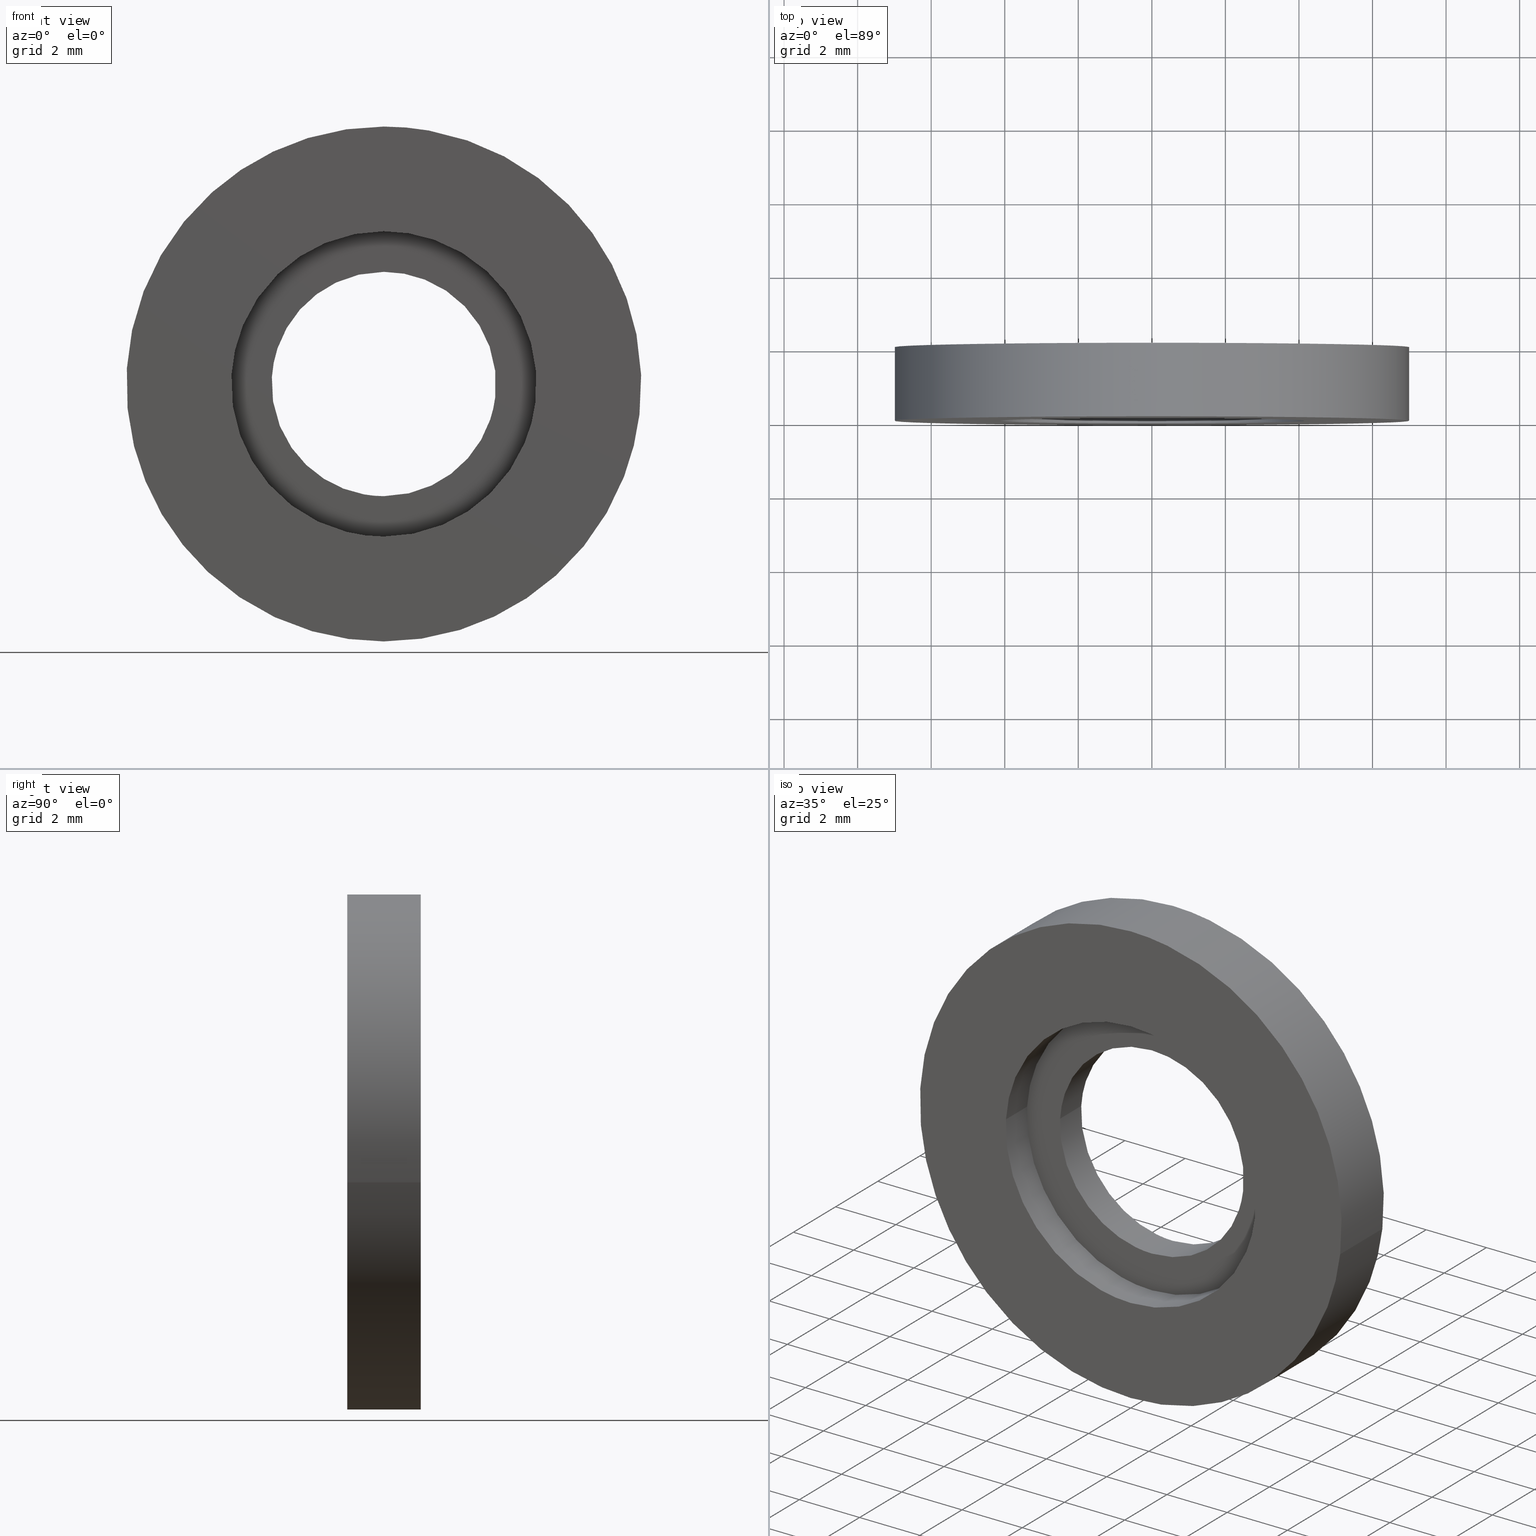
[diagram: canonical four-view strip — front | top / right | iso, engineering-drawing reading convention]
A machine part, canonical four-view strip (front | top / right | iso — engineering-drawing reading convention). The complete STEP part file that produces these views, byte-faithful:
ISO-10303-21;
HEADER;
/****************************************************************
 * Generated by software with PDE/Lib inside                    *
 * PDElib Version 4.4.1-0003, patched  Thursday August 19 11:58 *
 * International Technegroup Inc. (www.iti-oh.com)              *
 ****************************************************************/
FILE_DESCRIPTION((''),'2;1');
FILE_NAME('','2005-07-15T17:30:02',(''),(''),'','CADfix','');
FILE_SCHEMA(('AUTOMOTIVE_DESIGN'));
ENDSEC;
DATA;
#5=APPLICATION_CONTEXT('automotive design');
#6=APPLICATION_PROTOCOL_DEFINITION('Draft International Standard','automotive_design',1998,#5);
#7=PRODUCT_CONTEXT('None',#5,'mechanical');
#8=PRODUCT('washer','','None',(#7));
#9=PRODUCT_RELATED_PRODUCT_CATEGORY('part','description',(#8));
#10=PRODUCT_DEFINITION_FORMATION('None','None',#8);
#11=PRODUCT_DEFINITION_CONTEXT('part definition',#5,'design');
#12=PRODUCT_DEFINITION('None','None',#10,#11);
#18=(NAMED_UNIT(*)PLANE_ANGLE_UNIT()SI_UNIT($,.RADIAN.));
#19=DIMENSIONAL_EXPONENTS(0.0,0.0,0.0,0.0,0.0,0.0,0.0);
#20=PLANE_ANGLE_MEASURE_WITH_UNIT(PLANE_ANGLE_MEASURE(0.017453292500000),#18);
#24=(CONVERSION_BASED_UNIT('DEGREE',#20)NAMED_UNIT(#19)PLANE_ANGLE_UNIT());
#28=(NAMED_UNIT(*)SI_UNIT($,.STERADIAN.)SOLID_ANGLE_UNIT());
#32=(LENGTH_UNIT()NAMED_UNIT(*)SI_UNIT(.MILLI.,.METRE.));
#34=UNCERTAINTY_MEASURE_WITH_UNIT(LENGTH_MEASURE(0.001000000000000),#32,'DISTANCE_ACCURACY_VALUE','');
#36=(GEOMETRIC_REPRESENTATION_CONTEXT(3)GLOBAL_UNCERTAINTY_ASSIGNED_CONTEXT((#34))GLOBAL_UNIT_ASSIGNED_CONTEXT((#24,#28,#32))REPRESENTATION_CONTEXT('None','None'));
#37=AXIS2_PLACEMENT_3D('',#38,#39,#40);
#38=CARTESIAN_POINT('',(0.0,0.0,0.0));
#39=DIRECTION('',(0.0,0.0,1.0));
#40=DIRECTION('',(1.0,0.0,0.0));
#41=ADVANCED_BREP_SHAPE_REPRESENTATION('',(#37,#661),#36);
#42=PRODUCT_DEFINITION_SHAPE('','',#12);
#43=SHAPE_DEFINITION_REPRESENTATION(#42,#41);
#44=CARTESIAN_POINT('',(4.120991520428268,-0.975000000000000,-0.489842309894017));
#45=CARTESIAN_POINT('',(4.135010596886946,-0.975000000000000,-0.371901303077065));
#46=CARTESIAN_POINT('',(4.142261409720344,-0.975000000000000,-0.253351561166736));
#47=CARTESIAN_POINT('',(4.395612970887080,-0.975000000000000,3.888909848553608));
#48=CARTESIAN_POINT('',(0.253351561166736,-0.975000000000000,4.142261409720344));
#49=CARTESIAN_POINT('',(-3.888909848553608,-0.975000000000000,4.395612970887080));
#50=CARTESIAN_POINT('',(-4.142261409720344,-0.975000000000000,0.253351561166735));
#51=CARTESIAN_POINT('',(4.120991520428268,-2.025624999999999,-0.489842309894017));
#52=CARTESIAN_POINT('',(4.135010596886946,-2.025625000000000,-0.371901303077065));
#53=CARTESIAN_POINT('',(4.142261409720344,-2.025625000000000,-0.253351561166736));
#54=CARTESIAN_POINT('',(4.395612970887080,-2.025624999999999,3.888909848553608));
#55=CARTESIAN_POINT('',(0.253351561166736,-2.025625000000000,4.142261409720344));
#56=CARTESIAN_POINT('',(-3.888909848553608,-2.025624999999999,4.395612970887080));
#57=CARTESIAN_POINT('',(-4.142261409720344,-2.025625000000000,0.253351561166735));
#65=(BOUNDED_SURFACE()B_SPLINE_SURFACE(2,1,((#44,#51),(#45,#52),(#46,#53),(#47,#54),(#48,#55),(#49,#56),(#50,#57)),.UNSPECIFIED.,.F.,.F.,.U.)B_SPLINE_SURFACE_WITH_KNOTS((3,2,2,3),(2,2),(0.0,0.275037937964076,7.150986387065953,14.026934836167831),(0.0,1.0),.UNSPECIFIED.)GEOMETRIC_REPRESENTATION_ITEM()RATIONAL_B_SPLINE_SURFACE(((0.977505800795127,0.977505800795127),(0.988284271247462,0.988284271247462),(1.0,1.0),(0.707106781186548,0.707106781186548),(1.0,1.0),(0.707106781186548,0.707106781186548),(1.0,1.0)))REPRESENTATION_ITEM('')SURFACE());
#66=CARTESIAN_POINT('',(4.120992084721502,-1.000000000000042,-0.489837562508097));
#67=VERTEX_POINT('',#66);
#68=CARTESIAN_POINT('',(0.0,-1.0,4.150002000000000));
#69=VERTEX_POINT('',#68);
#70=CARTESIAN_POINT('',(4.120992084721502,-1.000000000000042,-0.489837562508097));
#71=CARTESIAN_POINT('',(4.150002000000001,-1.0,-0.245777816216738));
#72=CARTESIAN_POINT('',(4.150002000000000,-1.0,-2.795203E-016));
#73=CARTESIAN_POINT('',(4.150002000000000,-1.0,4.150002000000000));
#74=CARTESIAN_POINT('',(0.0,-1.0,4.150002000000000));
#82=(BOUNDED_CURVE()B_SPLINE_CURVE(2,(#70,#71,#72,#73,#74),.UNSPECIFIED.,.F.,.U.)B_SPLINE_CURVE_WITH_KNOTS((3,2,3),(0.229562668207552,0.250000000000000,0.500000000000000),.UNSPECIFIED.)CURVE()GEOMETRIC_REPRESENTATION_ITEM()RATIONAL_B_SPLINE_CURVE((0.956027135792348,0.976056176429406,1.0,0.707106781186547,1.0))REPRESENTATION_ITEM(''));
#83=EDGE_CURVE('',#67,#69,#82,.T.);
#84=ORIENTED_EDGE('',*,*,#83,.F.);
#85=CARTESIAN_POINT('',(4.120992077924378,-2.0,-0.489837619692699));
#86=VERTEX_POINT('',#85);
#87=CARTESIAN_POINT('',(4.120992084721502,-1.000000000000042,-0.489837562508097));
#88=CARTESIAN_POINT('',(4.120992077924378,-2.0,-0.489837619692699));
#89=QUASI_UNIFORM_CURVE('',1,(#87,#88),.UNSPECIFIED.,.F.,.U.);
#90=EDGE_CURVE('',#67,#86,#89,.T.);
#91=ORIENTED_EDGE('',*,*,#90,.T.);
#92=CARTESIAN_POINT('',(0.0,-2.0,4.150002000000000));
#93=VERTEX_POINT('',#92);
#94=CARTESIAN_POINT('',(4.120992077924378,-2.000000000000000,-0.489837619692699));
#95=CARTESIAN_POINT('',(4.150002000000000,-2.000000000000000,-0.245777845111303));
#96=CARTESIAN_POINT('',(4.150002000000000,-2.0,-2.795203E-016));
#97=CARTESIAN_POINT('',(4.150002000000000,-2.0,4.150002000000000));
#98=CARTESIAN_POINT('',(0.0,-2.0,4.150002000000000));
#106=(BOUNDED_CURVE()B_SPLINE_CURVE(2,(#94,#95,#96,#97,#98),.UNSPECIFIED.,.F.,.U.)B_SPLINE_CURVE_WITH_KNOTS((3,2,3),(0.229562665862392,0.250000000000000,0.500000000000000),.UNSPECIFIED.)CURVE()GEOMETRIC_REPRESENTATION_ITEM()RATIONAL_B_SPLINE_CURVE((0.956027131195729,0.976056173681880,1.0,0.707106781186547,1.0))REPRESENTATION_ITEM(''));
#107=EDGE_CURVE('',#86,#93,#106,.T.);
#108=ORIENTED_EDGE('',*,*,#107,.T.);
#109=CARTESIAN_POINT('',(-4.142261716955668,-2.0,0.253346537813635));
#110=VERTEX_POINT('',#109);
#111=CARTESIAN_POINT('',(0.0,-2.0,4.150002000000000));
#112=CARTESIAN_POINT('',(-3.903936802249314,-2.000000000000000,4.150001999999999));
#113=CARTESIAN_POINT('',(-4.142261716955668,-2.000000000000000,0.253346537813635));
#121=(BOUNDED_CURVE()B_SPLINE_CURVE(2,(#111,#112,#113),.UNSPECIFIED.,.F.,.U.)B_SPLINE_CURVE_WITH_KNOTS((3,3),(0.500000000000000,0.739333171490855),.UNSPECIFIED.)CURVE()GEOMETRIC_REPRESENTATION_ITEM()RATIONAL_B_SPLINE_CURVE((1.0,0.719603748132846,0.976072490133807))REPRESENTATION_ITEM(''));
#122=EDGE_CURVE('',#93,#110,#121,.T.);
#123=ORIENTED_EDGE('',*,*,#122,.T.);
#124=CARTESIAN_POINT('',(-4.142261720703038,-0.999999999999970,0.253346476542214));
#125=VERTEX_POINT('',#124);
#126=CARTESIAN_POINT('',(-4.142261720703038,-0.999999999999970,0.253346476542214));
#127=CARTESIAN_POINT('',(-4.142261716955668,-2.0,0.253346537813635));
#128=QUASI_UNIFORM_CURVE('',1,(#126,#127),.UNSPECIFIED.,.F.,.U.);
#129=EDGE_CURVE('',#125,#110,#128,.T.);
#130=ORIENTED_EDGE('',*,*,#129,.F.);
#131=CARTESIAN_POINT('',(0.0,-1.0,4.150002000000000));
#132=CARTESIAN_POINT('',(-3.903936860103388,-1.0,4.150001999999998));
#133=CARTESIAN_POINT('',(-4.142261720703038,-0.999999999999970,0.253346476542214));
#141=(BOUNDED_CURVE()B_SPLINE_CURVE(2,(#131,#132,#133),.UNSPECIFIED.,.F.,.U.)B_SPLINE_CURVE_WITH_KNOTS((3,3),(0.500000000000000,0.739333174043130),.UNSPECIFIED.)CURVE()GEOMETRIC_REPRESENTATION_ITEM()RATIONAL_B_SPLINE_CURVE((1.0,0.719603745142670,0.976072495603829))REPRESENTATION_ITEM(''));
#142=EDGE_CURVE('',#69,#125,#141,.T.);
#143=ORIENTED_EDGE('',*,*,#142,.F.);
#144=EDGE_LOOP('',(#84,#91,#108,#123,#130,#143));
#145=FACE_OUTER_BOUND('',#144,.T.);
#146=ADVANCED_FACE('',(#145),#65,.F.);
#147=CARTESIAN_POINT('',(-4.142261409720344,-0.975000000000000,0.253351561166735));
#148=CARTESIAN_POINT('',(-4.395612970887080,-0.975000000000000,-3.888909848553609));
#149=CARTESIAN_POINT('',(-0.253351561166736,-0.975000000000000,-4.142261409720344));
#150=CARTESIAN_POINT('',(3.658407250070912,-0.975000000000000,-4.381514828012384));
#151=CARTESIAN_POINT('',(4.120991520428268,-0.975000000000000,-0.489842309894017));
#152=CARTESIAN_POINT('',(-4.142261409720344,-2.025625000000000,0.253351561166735));
#153=CARTESIAN_POINT('',(-4.395612970887080,-2.025624999999999,-3.888909848553609));
#154=CARTESIAN_POINT('',(-0.253351561166736,-2.025625000000000,-4.142261409720344));
#155=CARTESIAN_POINT('',(3.658407250070912,-2.025624999999999,-4.381514828012384));
#156=CARTESIAN_POINT('',(4.120991520428268,-2.025624999999999,-0.489842309894017));
#164=(BOUNDED_SURFACE()B_SPLINE_SURFACE(2,1,((#147,#152),(#148,#153),(#149,#154),(#150,#155),(#151,#156)),.UNSPECIFIED.,.F.,.F.,.U.)B_SPLINE_SURFACE_WITH_KNOTS((3,2,3),(2,2),(0.0,6.875948449101878,13.476858960239680),(0.0,1.0),.UNSPECIFIED.)GEOMETRIC_REPRESENTATION_ITEM()RATIONAL_B_SPLINE_SURFACE(((1.0,1.0),(0.707106781186548,0.707106781186548),(1.0,1.0),(0.718822509939086,0.718822509939086),(0.977505800795127,0.977505800795127)))REPRESENTATION_ITEM('')SURFACE());
#165=CARTESIAN_POINT('',(0.0,-1.0,-4.150002000000000));
#166=VERTEX_POINT('',#165);
#167=CARTESIAN_POINT('',(0.0,-1.0,-4.150002000000000));
#168=CARTESIAN_POINT('',(3.685930335130786,-1.0,-4.150001999999999));
#169=CARTESIAN_POINT('',(4.120992084721502,-1.000000000000042,-0.489837562508097));
#177=(BOUNDED_CURVE()B_SPLINE_CURVE(2,(#167,#168,#169),.UNSPECIFIED.,.F.,.U.)B_SPLINE_CURVE_WITH_KNOTS((3,3),(0.0,0.229562668207552),.UNSPECIFIED.)CURVE()GEOMETRIC_REPRESENTATION_ITEM()RATIONAL_B_SPLINE_CURVE((1.0,0.731050604757142,0.956027135792348))REPRESENTATION_ITEM(''));
#178=EDGE_CURVE('',#166,#67,#177,.T.);
#179=ORIENTED_EDGE('',*,*,#178,.F.);
#180=CARTESIAN_POINT('',(-4.142261720703038,-0.999999999999970,0.253346476542214));
#181=CARTESIAN_POINT('',(-4.150002000000000,-1.0,0.126791479354253));
#182=CARTESIAN_POINT('',(-4.150002000000000,-1.0,-2.795203E-016));
#183=CARTESIAN_POINT('',(-4.150002000000000,-1.0,-4.150002000000000));
#184=CARTESIAN_POINT('',(0.0,-1.0,-4.150002000000000));
#192=(BOUNDED_CURVE()B_SPLINE_CURVE(2,(#180,#181,#182,#183,#184),.UNSPECIFIED.,.F.,.U.)B_SPLINE_CURVE_WITH_KNOTS((3,2,3),(0.739333174043130,0.750000000000000,1.0),.UNSPECIFIED.)CURVE()GEOMETRIC_REPRESENTATION_ITEM()RATIONAL_B_SPLINE_CURVE((0.976072495603829,0.987503036043877,1.0,0.707106781186547,1.0))REPRESENTATION_ITEM(''));
#193=EDGE_CURVE('',#125,#166,#192,.T.);
#194=ORIENTED_EDGE('',*,*,#193,.F.);
#195=ORIENTED_EDGE('',*,*,#129,.T.);
#196=CARTESIAN_POINT('',(0.0,-2.0,-4.150002000000000));
#197=VERTEX_POINT('',#196);
#198=CARTESIAN_POINT('',(-4.142261716955668,-2.000000000000000,0.253346537813635));
#199=CARTESIAN_POINT('',(-4.150002000000000,-2.000000000000000,0.126791510075858));
#200=CARTESIAN_POINT('',(-4.150002000000000,-2.0,-2.795203E-016));
#201=CARTESIAN_POINT('',(-4.150002000000000,-2.0,-4.150002000000000));
#202=CARTESIAN_POINT('',(0.0,-2.0,-4.150002000000000));
#210=(BOUNDED_CURVE()B_SPLINE_CURVE(2,(#198,#199,#200,#201,#202),.UNSPECIFIED.,.F.,.U.)B_SPLINE_CURVE_WITH_KNOTS((3,2,3),(0.739333171490855,0.750000000000000,1.0),.UNSPECIFIED.)CURVE()GEOMETRIC_REPRESENTATION_ITEM()RATIONAL_B_SPLINE_CURVE((0.976072490133807,0.987503033053701,1.0,0.707106781186547,1.0))REPRESENTATION_ITEM(''));
#211=EDGE_CURVE('',#110,#197,#210,.T.);
#212=ORIENTED_EDGE('',*,*,#211,.T.);
#213=CARTESIAN_POINT('',(0.0,-2.0,-4.150002000000000));
#214=CARTESIAN_POINT('',(3.685930283623234,-2.000000000000000,-4.150001999999999));
#215=CARTESIAN_POINT('',(4.120992077924378,-2.000000000000000,-0.489837619692699));
#223=(BOUNDED_CURVE()B_SPLINE_CURVE(2,(#213,#214,#215),.UNSPECIFIED.,.F.,.U.)B_SPLINE_CURVE_WITH_KNOTS((3,3),(0.0,0.229562665862392),.UNSPECIFIED.)CURVE()GEOMETRIC_REPRESENTATION_ITEM()RATIONAL_B_SPLINE_CURVE((1.0,0.731050607504668,0.956027131195729))REPRESENTATION_ITEM(''));
#224=EDGE_CURVE('',#197,#86,#223,.T.);
#225=ORIENTED_EDGE('',*,*,#224,.T.);
#226=ORIENTED_EDGE('',*,*,#90,.F.);
#227=EDGE_LOOP('',(#179,#194,#195,#212,#225,#226));
#228=FACE_OUTER_BOUND('',#227,.T.);
#229=ADVANCED_FACE('',(#228),#164,.F.);
#230=CARTESIAN_POINT('',(3.023335626397158,0.024999999999999,-0.404949646447528));
#231=CARTESIAN_POINT('',(3.026014376165050,0.024999999999999,-0.382413608102410));
#232=CARTESIAN_POINT('',(3.038981230730632,0.024999999999999,-0.273324832731103));
#233=CARTESIAN_POINT('',(3.044310137051895,0.024999999999999,-0.186197984532775));
#234=CARTESIAN_POINT('',(3.230508121584670,0.024999999999999,2.858112152519122));
#235=CARTESIAN_POINT('',(0.186197984532774,0.024999999999999,3.044310137051895));
#236=CARTESIAN_POINT('',(-2.858112152519122,0.024999999999999,3.230508121584669));
#237=CARTESIAN_POINT('',(-3.045649230794186,0.024999999999999,0.164303995377394));
#238=CARTESIAN_POINT('',(-3.046980370098751,0.024999999999999,0.142540060129155));
#239=CARTESIAN_POINT('',(3.023335626397158,-1.025625000000001,-0.404949646447528));
#240=CARTESIAN_POINT('',(3.026014376165050,-1.025625000000000,-0.382413608102410));
#241=CARTESIAN_POINT('',(3.038981230730632,-1.025625000000000,-0.273324832731103));
#242=CARTESIAN_POINT('',(3.044310137051895,-1.025625000000000,-0.186197984532775));
#243=CARTESIAN_POINT('',(3.230508121584670,-1.025625000000000,2.858112152519122));
#244=CARTESIAN_POINT('',(0.186197984532774,-1.025625000000000,3.044310137051895));
#245=CARTESIAN_POINT('',(-2.858112152519122,-1.025625000000000,3.230508121584669));
#246=CARTESIAN_POINT('',(-3.045649230794186,-1.025625000000000,0.164303995377394));
#247=CARTESIAN_POINT('',(-3.046980370098751,-1.025624999999999,0.142540060129155));
#255=(BOUNDED_SURFACE()B_SPLINE_SURFACE(2,1,((#230,#239),(#231,#240),(#232,#241),(#233,#242),(#234,#243),(#235,#244),(#236,#245),(#237,#246),(#238,#247)),.UNSPECIFIED.,.F.,.F.,.U.)B_SPLINE_SURFACE_WITH_KNOTS((3,1,2,2,1,3),(2,2),(0.0,0.051543144661396,0.253679296825297,5.307083100922807,10.360486905020320,10.412037142382770),(0.0,1.0),.UNSPECIFIED.)GEOMETRIC_REPRESENTATION_ITEM()RATIONAL_B_SPLINE_SURFACE(((0.972008948739658,0.972008948739658),(0.974757374767393,0.974757374767393),(0.988284271247462,0.988284271247462),(1.0,1.0),(0.707106781186548,0.707106781186548),(1.0,1.0),(0.707106781186548,0.707106781186548),(1.002987830685417,1.002987830685417),(1.005975661370835,1.005975661370835)))REPRESENTATION_ITEM('')SURFACE());
#256=CARTESIAN_POINT('',(3.028678228583696,-0.999999999999980,-0.360002899574624));
#257=VERTEX_POINT('',#256);
#258=CARTESIAN_POINT('',(0.0,-1.0,3.049998999999999));
#259=VERTEX_POINT('',#258);
#260=CARTESIAN_POINT('',(3.028678228583697,-0.999999999999980,-0.360002899574624));
#261=CARTESIAN_POINT('',(3.049999000000000,-1.0,-0.180632799276890));
#262=CARTESIAN_POINT('',(3.049999000000000,-1.0,-2.795203E-016));
#263=CARTESIAN_POINT('',(3.049998999999999,-1.0,3.049998999999999));
#264=CARTESIAN_POINT('',(0.0,-1.0,3.049998999999999));
#272=(BOUNDED_CURVE()B_SPLINE_CURVE(2,(#260,#261,#262,#263,#264),.UNSPECIFIED.,.F.,.U.)B_SPLINE_CURVE_WITH_KNOTS((3,2,3),(0.229562551530697,0.250000000000000,0.500000000000000),.UNSPECIFIED.)CURVE()GEOMETRIC_REPRESENTATION_ITEM()RATIONAL_B_SPLINE_CURVE((0.956026907100639,0.976056039733967,1.0,0.707106781186547,1.0))REPRESENTATION_ITEM(''));
#273=EDGE_CURVE('',#257,#259,#272,.T.);
#274=ORIENTED_EDGE('',*,*,#273,.T.);
#275=CARTESIAN_POINT('',(-3.044310423648793,-0.999999999999929,0.186193298596548));
#276=VERTEX_POINT('',#275);
#277=CARTESIAN_POINT('',(0.0,-1.0,3.049998999999999));
#278=CARTESIAN_POINT('',(-2.869156987937794,-1.0,3.049998999999999));
#279=CARTESIAN_POINT('',(-3.044310423648793,-0.999999999999929,0.186193298596548));
#287=(BOUNDED_CURVE()B_SPLINE_CURVE(2,(#277,#278,#279),.UNSPECIFIED.,.F.,.U.)B_SPLINE_CURVE_WITH_KNOTS((3,3),(0.500000000000000,0.739333227833638),.UNSPECIFIED.)CURVE()GEOMETRIC_REPRESENTATION_ITEM()RATIONAL_B_SPLINE_CURVE((1.0,0.719603682123169,0.976072610887369))REPRESENTATION_ITEM(''));
#288=EDGE_CURVE('',#259,#276,#287,.T.);
#289=ORIENTED_EDGE('',*,*,#288,.T.);
#290=CARTESIAN_POINT('',(-3.044310420114468,-5.819705E-016,0.186193356385155));
#291=VERTEX_POINT('',#290);
#292=CARTESIAN_POINT('',(-3.044310420114468,-5.819705E-016,0.186193356385155));
#293=CARTESIAN_POINT('',(-3.044310423648793,-0.999999999999929,0.186193298596548));
#294=QUASI_UNIFORM_CURVE('',1,(#292,#293),.UNSPECIFIED.,.F.,.U.);
#295=EDGE_CURVE('',#291,#276,#294,.T.);
#296=ORIENTED_EDGE('',*,*,#295,.F.);
#297=CARTESIAN_POINT('',(0.0,-5.602572E-016,3.049998999999999));
#298=VERTEX_POINT('',#297);
#299=CARTESIAN_POINT('',(0.0,-5.602572E-016,3.049998999999999));
#300=CARTESIAN_POINT('',(-2.869156933372273,-5.602572E-016,3.049998999999998));
#301=CARTESIAN_POINT('',(-3.044310420114468,-5.819705E-016,0.186193356385155));
#309=(BOUNDED_CURVE()B_SPLINE_CURVE(2,(#299,#300,#301),.UNSPECIFIED.,.F.,.U.)B_SPLINE_CURVE_WITH_KNOTS((3,3),(0.500000000000000,0.739333224558268),.UNSPECIFIED.)CURVE()GEOMETRIC_REPRESENTATION_ITEM()RATIONAL_B_SPLINE_CURVE((1.0,0.719603685960504,0.976072603867611))REPRESENTATION_ITEM(''));
#310=EDGE_CURVE('',#298,#291,#309,.T.);
#311=ORIENTED_EDGE('',*,*,#310,.F.);
#312=CARTESIAN_POINT('',(3.028678226535830,-5.818179E-016,-0.360002916803237));
#313=VERTEX_POINT('',#312);
#314=CARTESIAN_POINT('',(3.028678226535831,-5.818179E-016,-0.360002916803237));
#315=CARTESIAN_POINT('',(3.049999000000000,-5.602572E-016,-0.180632807982265));
#316=CARTESIAN_POINT('',(3.049999000000000,-5.602572E-016,-2.795203E-016));
#317=CARTESIAN_POINT('',(3.049998999999999,-5.602572E-016,3.049998999999999));
#318=CARTESIAN_POINT('',(0.0,-5.602572E-016,3.049998999999999));
#326=(BOUNDED_CURVE()B_SPLINE_CURVE(2,(#314,#315,#316,#317,#318),.UNSPECIFIED.,.F.,.U.)B_SPLINE_CURVE_WITH_KNOTS((3,2,3),(0.229562550569323,0.250000000000000,0.500000000000000),.UNSPECIFIED.)CURVE()GEOMETRIC_REPRESENTATION_ITEM()RATIONAL_B_SPLINE_CURVE((0.956026905216306,0.976056038607648,1.0,0.707106781186547,1.0))REPRESENTATION_ITEM(''));
#327=EDGE_CURVE('',#313,#298,#326,.T.);
#328=ORIENTED_EDGE('',*,*,#327,.F.);
#329=CARTESIAN_POINT('',(3.028678226535830,-5.818179E-016,-0.360002916803237));
#330=CARTESIAN_POINT('',(3.028678228583696,-0.999999999999980,-0.360002899574624));
#331=QUASI_UNIFORM_CURVE('',1,(#329,#330),.UNSPECIFIED.,.F.,.U.);
#332=EDGE_CURVE('',#313,#257,#331,.T.);
#333=ORIENTED_EDGE('',*,*,#332,.T.);
#334=EDGE_LOOP('',(#274,#289,#296,#311,#328,#333));
#335=FACE_OUTER_BOUND('',#334,.T.);
#336=ADVANCED_FACE('',(#335),#255,.F.);
#337=CARTESIAN_POINT('',(-3.044310137051895,0.024999999999999,0.186197984532774));
#338=CARTESIAN_POINT('',(-3.230508121584670,0.024999999999999,-2.858112152519122));
#339=CARTESIAN_POINT('',(-0.186197984532774,0.024999999999999,-3.044310137051896));
#340=CARTESIAN_POINT('',(2.688706765516987,0.024999999999999,-3.220146844248012));
#341=CARTESIAN_POINT('',(3.028678062399655,0.024999999999999,-0.360004297668879));
#342=CARTESIAN_POINT('',(-3.044310137051895,-1.025625000000000,0.186197984532774));
#343=CARTESIAN_POINT('',(-3.230508121584670,-1.025625000000000,-2.858112152519122));
#344=CARTESIAN_POINT('',(-0.186197984532774,-1.025625000000000,-3.044310137051896));
#345=CARTESIAN_POINT('',(2.688706765516987,-1.025625000000000,-3.220146844248012));
#346=CARTESIAN_POINT('',(3.028678062399655,-1.025625000000000,-0.360004297668879));
#354=(BOUNDED_SURFACE()B_SPLINE_SURFACE(2,1,((#337,#342),(#338,#343),(#339,#344),(#340,#345),(#341,#346)),.UNSPECIFIED.,.F.,.F.,.U.)B_SPLINE_SURFACE_WITH_KNOTS((3,2,3),(2,2),(0.0,5.053403804097509,9.904671456031117),(0.0,1.0),.UNSPECIFIED.)GEOMETRIC_REPRESENTATION_ITEM()RATIONAL_B_SPLINE_SURFACE(((1.0,1.0),(0.707106781186548,0.707106781186548),(1.0,1.0),(0.718822509939086,0.718822509939086),(0.977505800795127,0.977505800795127)))REPRESENTATION_ITEM('')SURFACE());
#355=CARTESIAN_POINT('',(0.0,-1.0,-3.049999000000000));
#356=VERTEX_POINT('',#355);
#357=CARTESIAN_POINT('',(0.0,-1.0,-3.049999000000000));
#358=CARTESIAN_POINT('',(2.708932675273653,-1.0,-3.049999000000000));
#359=CARTESIAN_POINT('',(3.028678228583697,-0.999999999999980,-0.360002899574624));
#367=(BOUNDED_CURVE()B_SPLINE_CURVE(2,(#357,#358,#359),.UNSPECIFIED.,.F.,.U.)B_SPLINE_CURVE_WITH_KNOTS((3,3),(0.0,0.229562551530697),.UNSPECIFIED.)CURVE()GEOMETRIC_REPRESENTATION_ITEM()RATIONAL_B_SPLINE_CURVE((1.0,0.731050741452580,0.956026907100639))REPRESENTATION_ITEM(''));
#368=EDGE_CURVE('',#356,#257,#367,.T.);
#369=ORIENTED_EDGE('',*,*,#368,.T.);
#370=ORIENTED_EDGE('',*,*,#332,.F.);
#371=CARTESIAN_POINT('',(0.0,-5.602572E-016,-3.049999000000000));
#372=VERTEX_POINT('',#371);
#373=CARTESIAN_POINT('',(0.0,-5.602572E-016,-3.049999000000000));
#374=CARTESIAN_POINT('',(2.708932659755432,-5.602572E-016,-3.049998999999999));
#375=CARTESIAN_POINT('',(3.028678226535831,-5.818179E-016,-0.360002916803237));
#383=(BOUNDED_CURVE()B_SPLINE_CURVE(2,(#373,#374,#375),.UNSPECIFIED.,.F.,.U.)B_SPLINE_CURVE_WITH_KNOTS((3,3),(0.0,0.229562550569323),.UNSPECIFIED.)CURVE()GEOMETRIC_REPRESENTATION_ITEM()RATIONAL_B_SPLINE_CURVE((1.0,0.731050742578900,0.956026905216306))REPRESENTATION_ITEM(''));
#384=EDGE_CURVE('',#372,#313,#383,.T.);
#385=ORIENTED_EDGE('',*,*,#384,.F.);
#386=CARTESIAN_POINT('',(-3.044310420114468,-5.819705E-016,0.186193356385155));
#387=CARTESIAN_POINT('',(-3.049999000000000,-5.602572E-016,0.093183576945955));
#388=CARTESIAN_POINT('',(-3.049999000000000,-5.602572E-016,-2.795203E-016));
#389=CARTESIAN_POINT('',(-3.049998999999999,-5.602572E-016,-3.049998999999999));
#390=CARTESIAN_POINT('',(0.0,-5.602572E-016,-3.049999000000000));
#398=(BOUNDED_CURVE()B_SPLINE_CURVE(2,(#386,#387,#388,#389,#390),.UNSPECIFIED.,.F.,.U.)B_SPLINE_CURVE_WITH_KNOTS((3,2,3),(0.739333224558268,0.750000000000000,1.0),.UNSPECIFIED.)CURVE()GEOMETRIC_REPRESENTATION_ITEM()RATIONAL_B_SPLINE_CURVE((0.976072603867611,0.987503095226043,1.0,0.707106781186547,1.0))REPRESENTATION_ITEM(''));
#399=EDGE_CURVE('',#291,#372,#398,.T.);
#400=ORIENTED_EDGE('',*,*,#399,.F.);
#401=ORIENTED_EDGE('',*,*,#295,.T.);
#402=CARTESIAN_POINT('',(-3.044310423648793,-0.999999999999929,0.186193298596548));
#403=CARTESIAN_POINT('',(-3.049999000000000,-1.0,0.093183547970642));
#404=CARTESIAN_POINT('',(-3.049999000000000,-1.0,-2.795203E-016));
#405=CARTESIAN_POINT('',(-3.049998999999999,-1.0,-3.049998999999999));
#406=CARTESIAN_POINT('',(0.0,-1.0,-3.049999000000000));
#414=(BOUNDED_CURVE()B_SPLINE_CURVE(2,(#402,#403,#404,#405,#406),.UNSPECIFIED.,.F.,.U.)B_SPLINE_CURVE_WITH_KNOTS((3,2,3),(0.739333227833638,0.750000000000000,1.0),.UNSPECIFIED.)CURVE()GEOMETRIC_REPRESENTATION_ITEM()RATIONAL_B_SPLINE_CURVE((0.976072610887369,0.987503099063378,1.0,0.707106781186547,1.0))REPRESENTATION_ITEM(''));
#415=EDGE_CURVE('',#276,#356,#414,.T.);
#416=ORIENTED_EDGE('',*,*,#415,.T.);
#417=EDGE_LOOP('',(#369,#370,#385,#400,#401,#416));
#418=FACE_OUTER_BOUND('',#417,.T.);
#419=ADVANCED_FACE('',(#418),#354,.F.);
#420=CARTESIAN_POINT('',(6.951066684545665,0.050000000000000,-0.826239642597310));
#421=CARTESIAN_POINT('',(6.974713308140240,0.050000000000000,-0.627303100465844));
#422=CARTESIAN_POINT('',(6.986943588953067,0.050000000000000,-0.427339776743999));
#423=CARTESIAN_POINT('',(7.414283365697066,0.050000000000000,6.559603812209068));
#424=CARTESIAN_POINT('',(0.427339776743999,0.050000000000000,6.986943588953067));
#425=CARTESIAN_POINT('',(-6.559603812209068,0.050000000000000,7.414283365697066));
#426=CARTESIAN_POINT('',(-6.986943588953067,0.050000000000000,0.427339776743999));
#427=CARTESIAN_POINT('',(6.951066684545665,-2.051250000000001,-0.826239642597310));
#428=CARTESIAN_POINT('',(6.974713308140240,-2.051250000000000,-0.627303100465844));
#429=CARTESIAN_POINT('',(6.986943588953067,-2.051250000000000,-0.427339776743999));
#430=CARTESIAN_POINT('',(7.414283365697066,-2.051250000000001,6.559603812209068));
#431=CARTESIAN_POINT('',(0.427339776743999,-2.051250000000000,6.986943588953067));
#432=CARTESIAN_POINT('',(-6.559603812209068,-2.051250000000001,7.414283365697066));
#433=CARTESIAN_POINT('',(-6.986943588953067,-2.051250000000000,0.427339776743999));
#441=(BOUNDED_SURFACE()B_SPLINE_SURFACE(2,1,((#420,#427),(#421,#428),(#422,#429),(#423,#430),(#424,#431),(#425,#432),(#426,#433)),.UNSPECIFIED.,.F.,.F.,.U.)B_SPLINE_SURFACE_WITH_KNOTS((3,2,2,3),(2,2),(0.0,0.463919189857867,12.061898936304530,23.659878682751181),(0.0,2.101250000000000),.UNSPECIFIED.)GEOMETRIC_REPRESENTATION_ITEM()RATIONAL_B_SPLINE_SURFACE(((0.977505800795127,0.977505800795127),(0.988284271247462,0.988284271247462),(1.0,1.0),(0.707106781186548,0.707106781186548),(1.0,1.0),(0.707106781186548,0.707106781186548),(1.0,1.0)))REPRESENTATION_ITEM('')SURFACE());
#442=CARTESIAN_POINT('',(6.951067210534475,-2.395768E-014,-0.826235217485072));
#443=VERTEX_POINT('',#442);
#444=CARTESIAN_POINT('',(0.0,0.0,7.0));
#445=VERTEX_POINT('',#444);
#446=CARTESIAN_POINT('',(6.951067210534475,-2.395768E-014,-0.826235217485072));
#447=CARTESIAN_POINT('',(7.0,0.0,-0.414566601616603));
#448=CARTESIAN_POINT('',(7.0,0.0,-2.795203E-016));
#449=CARTESIAN_POINT('',(6.999999999999999,0.0,6.999999999999999));
#450=CARTESIAN_POINT('',(0.0,0.0,7.0));
#458=(BOUNDED_CURVE()B_SPLINE_CURVE(2,(#446,#447,#448,#449,#450),.UNSPECIFIED.,.F.,.U.)B_SPLINE_CURVE_WITH_KNOTS((3,2,3),(0.229562581104653,0.250000000000000,0.500000000000000),.UNSPECIFIED.)CURVE()GEOMETRIC_REPRESENTATION_ITEM()RATIONAL_B_SPLINE_CURVE((0.956026965066855,0.976056074382012,1.0,0.707106781186547,1.0))REPRESENTATION_ITEM(''));
#459=EDGE_CURVE('',#443,#445,#458,.T.);
#460=ORIENTED_EDGE('',*,*,#459,.T.);
#461=CARTESIAN_POINT('',(-6.986943741830073,-1.567496E-014,0.427337277212387));
#462=VERTEX_POINT('',#461);
#463=CARTESIAN_POINT('',(0.0,0.0,7.0));
#464=CARTESIAN_POINT('',(-6.584944828460751,0.0,6.999999999999998));
#465=CARTESIAN_POINT('',(-6.986943741830074,-1.567496E-014,0.427337277212387));
#473=(BOUNDED_CURVE()B_SPLINE_CURVE(2,(#463,#464,#465),.UNSPECIFIED.,.F.,.U.)B_SPLINE_CURVE_WITH_KNOTS((3,3),(0.500000000000000,0.739333023969413),.UNSPECIFIED.)CURVE()GEOMETRIC_REPRESENTATION_ITEM()RATIONAL_B_SPLINE_CURVE((1.0,0.719603920964966,0.976072173966902))REPRESENTATION_ITEM(''));
#474=EDGE_CURVE('',#445,#462,#473,.T.);
#475=ORIENTED_EDGE('',*,*,#474,.T.);
#476=CARTESIAN_POINT('',(-6.986943739989564,-2.0,0.427337307304794));
#477=VERTEX_POINT('',#476);
#478=CARTESIAN_POINT('',(-6.986943741830073,-1.567496E-014,0.427337277212387));
#479=CARTESIAN_POINT('',(-6.986943739989564,-2.0,0.427337307304794));
#480=QUASI_UNIFORM_CURVE('',1,(#478,#479),.UNSPECIFIED.,.F.,.U.);
#481=EDGE_CURVE('',#462,#477,#480,.T.);
#482=ORIENTED_EDGE('',*,*,#481,.T.);
#483=CARTESIAN_POINT('',(0.0,-2.0,7.0));
#484=VERTEX_POINT('',#483);
#485=CARTESIAN_POINT('',(0.0,-2.0,7.0));
#486=CARTESIAN_POINT('',(-6.584944800046739,-2.0,6.999999999999999));
#487=CARTESIAN_POINT('',(-6.986943739989564,-2.0,0.427337307304794));
#495=(BOUNDED_CURVE()B_SPLINE_CURVE(2,(#485,#486,#487),.UNSPECIFIED.,.F.,.U.)B_SPLINE_CURVE_WITH_KNOTS((3,3),(0.500000000000000,0.739333023226263),.UNSPECIFIED.)CURVE()GEOMETRIC_REPRESENTATION_ITEM()RATIONAL_B_SPLINE_CURVE((1.0,0.719603921835620,0.976072172374189))REPRESENTATION_ITEM(''));
#496=EDGE_CURVE('',#484,#477,#495,.T.);
#497=ORIENTED_EDGE('',*,*,#496,.F.);
#498=CARTESIAN_POINT('',(6.951067204199181,-2.0,-0.826235270783800));
#499=VERTEX_POINT('',#498);
#500=CARTESIAN_POINT('',(6.951067204199181,-2.000000000000000,-0.826235270783800));
#501=CARTESIAN_POINT('',(7.0,-2.000000000000000,-0.414566628547696));
#502=CARTESIAN_POINT('',(7.0,-2.0,-2.795203E-016));
#503=CARTESIAN_POINT('',(6.999999999999999,-2.0,6.999999999999999));
#504=CARTESIAN_POINT('',(0.0,-2.0,7.0));
#512=(BOUNDED_CURVE()B_SPLINE_CURVE(2,(#500,#501,#502,#503,#504),.UNSPECIFIED.,.F.,.U.)B_SPLINE_CURVE_WITH_KNOTS((3,2,3),(0.229562579808786,0.250000000000000,0.500000000000000),.UNSPECIFIED.)CURVE()GEOMETRIC_REPRESENTATION_ITEM()RATIONAL_B_SPLINE_CURVE((0.956026962526900,0.976056072863809,1.0,0.707106781186547,1.0))REPRESENTATION_ITEM(''));
#513=EDGE_CURVE('',#499,#484,#512,.T.);
#514=ORIENTED_EDGE('',*,*,#513,.F.);
#515=CARTESIAN_POINT('',(6.951067210534475,-2.395768E-014,-0.826235217485072));
#516=CARTESIAN_POINT('',(6.951067204199181,-2.0,-0.826235270783800));
#517=QUASI_UNIFORM_CURVE('',1,(#515,#516),.UNSPECIFIED.,.F.,.U.);
#518=EDGE_CURVE('',#443,#499,#517,.T.);
#519=ORIENTED_EDGE('',*,*,#518,.F.);
#520=EDGE_LOOP('',(#460,#475,#482,#497,#514,#519));
#521=FACE_OUTER_BOUND('',#520,.T.);
#522=ADVANCED_FACE('',(#521),#441,.T.);
#523=CARTESIAN_POINT('',(-6.986943588953067,0.050000000000000,0.427339776743999));
#524=CARTESIAN_POINT('',(-7.414283365697066,0.050000000000000,-6.559603812209068));
#525=CARTESIAN_POINT('',(-0.427339776743999,0.050000000000000,-6.986943588953067));
#526=CARTESIAN_POINT('',(6.170804435876506,0.050000000000000,-7.390503377127691));
#527=CARTESIAN_POINT('',(6.951066684545665,0.050000000000000,-0.826239642597310));
#528=CARTESIAN_POINT('',(-6.986943588953067,-2.051250000000000,0.427339776743999));
#529=CARTESIAN_POINT('',(-7.414283365697066,-2.051250000000001,-6.559603812209068));
#530=CARTESIAN_POINT('',(-0.427339776743999,-2.051250000000000,-6.986943588953067));
#531=CARTESIAN_POINT('',(6.170804435876506,-2.051250000000001,-7.390503377127691));
#532=CARTESIAN_POINT('',(6.951066684545665,-2.051250000000001,-0.826239642597310));
#540=(BOUNDED_SURFACE()B_SPLINE_SURFACE(2,1,((#523,#528),(#524,#529),(#525,#530),(#526,#531),(#527,#532)),.UNSPECIFIED.,.F.,.F.,.U.)B_SPLINE_SURFACE_WITH_KNOTS((3,2,3),(2,2),(0.0,11.597979746446660,22.732040303035451),(0.0,2.101250000000000),.UNSPECIFIED.)GEOMETRIC_REPRESENTATION_ITEM()RATIONAL_B_SPLINE_SURFACE(((1.0,1.0),(0.707106781186548,0.707106781186548),(1.0,1.0),(0.718822509939086,0.718822509939086),(0.977505800795127,0.977505800795127)))REPRESENTATION_ITEM('')SURFACE());
#541=CARTESIAN_POINT('',(0.0,0.0,-7.0));
#542=VERTEX_POINT('',#541);
#543=CARTESIAN_POINT('',(0.0,0.0,-7.0));
#544=CARTESIAN_POINT('',(6.217225667462883,0.0,-7.0));
#545=CARTESIAN_POINT('',(6.951067210534475,-2.395768E-014,-0.826235217485072));
#553=(BOUNDED_CURVE()B_SPLINE_CURVE(2,(#543,#544,#545),.UNSPECIFIED.,.F.,.U.)B_SPLINE_CURVE_WITH_KNOTS((3,3),(0.0,0.229562581104653),.UNSPECIFIED.)CURVE()GEOMETRIC_REPRESENTATION_ITEM()RATIONAL_B_SPLINE_CURVE((1.0,0.731050706804535,0.956026965066855))REPRESENTATION_ITEM(''));
#554=EDGE_CURVE('',#542,#443,#553,.T.);
#555=ORIENTED_EDGE('',*,*,#554,.T.);
#556=ORIENTED_EDGE('',*,*,#518,.T.);
#557=CARTESIAN_POINT('',(0.0,-2.0,-7.0));
#558=VERTEX_POINT('',#557);
#559=CARTESIAN_POINT('',(0.0,-2.0,-7.0));
#560=CARTESIAN_POINT('',(6.217225619455447,-2.000000000000000,-7.0));
#561=CARTESIAN_POINT('',(6.951067204199181,-2.000000000000000,-0.826235270783800));
#569=(BOUNDED_CURVE()B_SPLINE_CURVE(2,(#559,#560,#561),.UNSPECIFIED.,.F.,.U.)B_SPLINE_CURVE_WITH_KNOTS((3,3),(0.0,0.229562579808786),.UNSPECIFIED.)CURVE()GEOMETRIC_REPRESENTATION_ITEM()RATIONAL_B_SPLINE_CURVE((1.0,0.731050708322738,0.956026962526900))REPRESENTATION_ITEM(''));
#570=EDGE_CURVE('',#558,#499,#569,.T.);
#571=ORIENTED_EDGE('',*,*,#570,.F.);
#572=CARTESIAN_POINT('',(-6.986943739989564,-2.0,0.427337307304794));
#573=CARTESIAN_POINT('',(-7.0,-2.000000000000000,0.213868104908519));
#574=CARTESIAN_POINT('',(-7.0,-2.0,-2.795203E-016));
#575=CARTESIAN_POINT('',(-6.999999999999999,-2.0,-6.999999999999999));
#576=CARTESIAN_POINT('',(0.0,-2.0,-7.0));
#584=(BOUNDED_CURVE()B_SPLINE_CURVE(2,(#572,#573,#574,#575,#576),.UNSPECIFIED.,.F.,.U.)B_SPLINE_CURVE_WITH_KNOTS((3,2,3),(0.739333023226263,0.750000000000000,1.0),.UNSPECIFIED.)CURVE()GEOMETRIC_REPRESENTATION_ITEM()RATIONAL_B_SPLINE_CURVE((0.976072172374189,0.987502859350927,1.0,0.707106781186547,1.0))REPRESENTATION_ITEM(''));
#585=EDGE_CURVE('',#477,#558,#584,.T.);
#586=ORIENTED_EDGE('',*,*,#585,.F.);
#587=ORIENTED_EDGE('',*,*,#481,.F.);
#588=CARTESIAN_POINT('',(-6.986943741830074,-1.567496E-014,0.427337277212387));
#589=CARTESIAN_POINT('',(-7.0,0.0,0.213868089820128));
#590=CARTESIAN_POINT('',(-7.0,0.0,-2.795203E-016));
#591=CARTESIAN_POINT('',(-6.999999999999999,0.0,-6.999999999999999));
#592=CARTESIAN_POINT('',(0.0,0.0,-7.0));
#600=(BOUNDED_CURVE()B_SPLINE_CURVE(2,(#588,#589,#590,#591,#592),.UNSPECIFIED.,.F.,.U.)B_SPLINE_CURVE_WITH_KNOTS((3,2,3),(0.739333023969413,0.750000000000000,1.0),.UNSPECIFIED.)CURVE()GEOMETRIC_REPRESENTATION_ITEM()RATIONAL_B_SPLINE_CURVE((0.976072173966902,0.987502860221582,1.0,0.707106781186547,1.0))REPRESENTATION_ITEM(''));
#601=EDGE_CURVE('',#462,#542,#600,.T.);
#602=ORIENTED_EDGE('',*,*,#601,.T.);
#603=EDGE_LOOP('',(#555,#556,#571,#586,#587,#602));
#604=FACE_OUTER_BOUND('',#603,.T.);
#605=ADVANCED_FACE('',(#604),#540,.T.);
#606=CARTESIAN_POINT('',(-4.564486176353026,-1.0,4.564587183712981));
#607=CARTESIAN_POINT('',(-4.564486176353026,-1.0,-4.564587406336436));
#608=CARTESIAN_POINT('',(4.564511703842593,-1.0,4.564587183712981));
#609=CARTESIAN_POINT('',(4.564511703842593,-1.0,-4.564587406336436));
#610=B_SPLINE_SURFACE_WITH_KNOTS('',1,1,((#606,#608),(#607,#609)),.UNSPECIFIED.,.F.,.F.,.U.,(2,2),(2,2),(0.0,9.129174590049416),(0.0,9.128997880195620),.UNSPECIFIED.);
#611=ORIENTED_EDGE('',*,*,#178,.T.);
#612=ORIENTED_EDGE('',*,*,#83,.T.);
#613=ORIENTED_EDGE('',*,*,#142,.T.);
#614=ORIENTED_EDGE('',*,*,#193,.T.);
#615=EDGE_LOOP('',(#611,#612,#613,#614));
#616=FACE_OUTER_BOUND('',#615,.T.);
#617=ORIENTED_EDGE('',*,*,#288,.F.);
#618=ORIENTED_EDGE('',*,*,#273,.F.);
#619=ORIENTED_EDGE('',*,*,#368,.F.);
#620=ORIENTED_EDGE('',*,*,#415,.F.);
#621=EDGE_LOOP('',(#617,#618,#619,#620));
#622=FACE_BOUND('',#621,.T.);
#623=ADVANCED_FACE('',(#616,#622),#610,.T.);
#624=CARTESIAN_POINT('',(-7.699130124775167,-2.801286E-016,-7.699299972865284));
#625=CARTESIAN_POINT('',(-7.699130124775167,-2.801286E-016,7.699300348374545));
#626=CARTESIAN_POINT('',(7.699172682491538,-2.801286E-016,-7.699299972865285));
#627=CARTESIAN_POINT('',(7.699172682491538,-2.801286E-016,7.699300348374545));
#628=B_SPLINE_SURFACE_WITH_KNOTS('',1,1,((#624,#626),(#625,#627)),.UNSPECIFIED.,.F.,.F.,.U.,(2,2),(2,2),(0.0,15.398600321239829),(0.0,15.398302807266701),.UNSPECIFIED.);
#629=ORIENTED_EDGE('',*,*,#601,.F.);
#630=ORIENTED_EDGE('',*,*,#474,.F.);
#631=ORIENTED_EDGE('',*,*,#459,.F.);
#632=ORIENTED_EDGE('',*,*,#554,.F.);
#633=EDGE_LOOP('',(#629,#630,#631,#632));
#634=FACE_OUTER_BOUND('',#633,.T.);
#635=ORIENTED_EDGE('',*,*,#310,.T.);
#636=ORIENTED_EDGE('',*,*,#399,.T.);
#637=ORIENTED_EDGE('',*,*,#384,.T.);
#638=ORIENTED_EDGE('',*,*,#327,.T.);
#639=EDGE_LOOP('',(#635,#636,#637,#638));
#640=FACE_BOUND('',#639,.T.);
#641=ADVANCED_FACE('',(#634,#640),#628,.T.);
#642=CARTESIAN_POINT('',(-7.699130124775172,-2.0,7.699299972865284));
#643=CARTESIAN_POINT('',(-7.699130124775172,-2.0,-7.699300348374545));
#644=CARTESIAN_POINT('',(7.699172682491543,-2.0,7.699299972865285));
#645=CARTESIAN_POINT('',(7.699172682491543,-2.0,-7.699300348374545));
#646=B_SPLINE_SURFACE_WITH_KNOTS('',1,1,((#642,#644),(#643,#645)),.UNSPECIFIED.,.F.,.F.,.U.,(2,2),(2,2),(0.0,15.398600321239829),(0.0,15.398302807266720),.UNSPECIFIED.);
#647=ORIENTED_EDGE('',*,*,#570,.T.);
#648=ORIENTED_EDGE('',*,*,#513,.T.);
#649=ORIENTED_EDGE('',*,*,#496,.T.);
#650=ORIENTED_EDGE('',*,*,#585,.T.);
#651=EDGE_LOOP('',(#647,#648,#649,#650));
#652=FACE_OUTER_BOUND('',#651,.T.);
#653=ORIENTED_EDGE('',*,*,#122,.F.);
#654=ORIENTED_EDGE('',*,*,#107,.F.);
#655=ORIENTED_EDGE('',*,*,#224,.F.);
#656=ORIENTED_EDGE('',*,*,#211,.F.);
#657=EDGE_LOOP('',(#653,#654,#655,#656));
#658=FACE_BOUND('',#657,.T.);
#659=ADVANCED_FACE('',(#652,#658),#646,.T.);
#660=CLOSED_SHELL('',(#146,#229,#336,#419,#522,#605,#623,#641,#659));
#661=MANIFOLD_SOLID_BREP('washer',#660);
#667=(NAMED_UNIT(*)PLANE_ANGLE_UNIT()SI_UNIT($,.RADIAN.));
#668=DIMENSIONAL_EXPONENTS(0.0,0.0,0.0,0.0,0.0,0.0,0.0);
#669=PLANE_ANGLE_MEASURE_WITH_UNIT(PLANE_ANGLE_MEASURE(0.017453292500000),#667);
#673=(CONVERSION_BASED_UNIT('DEGREE',#669)NAMED_UNIT(#668)PLANE_ANGLE_UNIT());
#677=(NAMED_UNIT(*)SI_UNIT($,.STERADIAN.)SOLID_ANGLE_UNIT());
#681=(LENGTH_UNIT()NAMED_UNIT(*)SI_UNIT(.MILLI.,.METRE.));
#683=UNCERTAINTY_MEASURE_WITH_UNIT(LENGTH_MEASURE(0.001000000000000),#681,'DISTANCE_ACCURACY_VALUE','');
#685=(GEOMETRIC_REPRESENTATION_CONTEXT(3)GLOBAL_UNCERTAINTY_ASSIGNED_CONTEXT((#683))GLOBAL_UNIT_ASSIGNED_CONTEXT((#673,#677,#681))REPRESENTATION_CONTEXT('','3D'));
ENDSEC;
END-ISO-10303-21;
